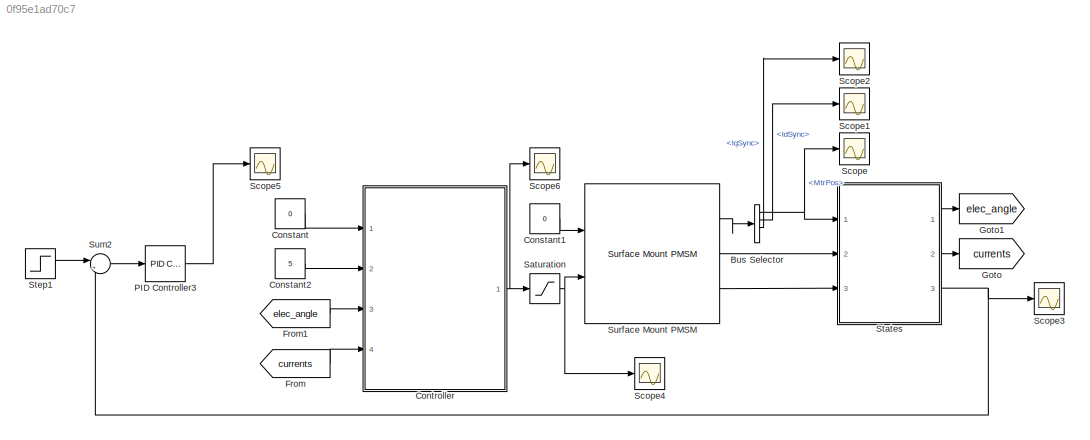
MODEL slx_0f95e1ad70c7
KIND model
CONFIG AbsTol = auto
CONFIG EnableMultiTasking = off
CONFIG FixedStep = auto
CONFIG MaxStep = auto
CONFIG MinStep = auto
CONFIG RelTol = 1e-3
CONFIG SampleTimeConstraint = Unconstrained
CONFIG SolverName = VariableStepAuto
CONFIG StartTime = 0.0
CONFIG StopTime = 5
BLOCK [BusSelector] Bus Selector
  OutputSignals = MtrPos,IdSync,IqSync,MtrSpd
  Ports = [1, 4]
BLOCK [Constant] Constant
  Value = 0
BLOCK [Constant] Constant1
  Value = 0
BLOCK [Constant] Constant2
  Value = 5
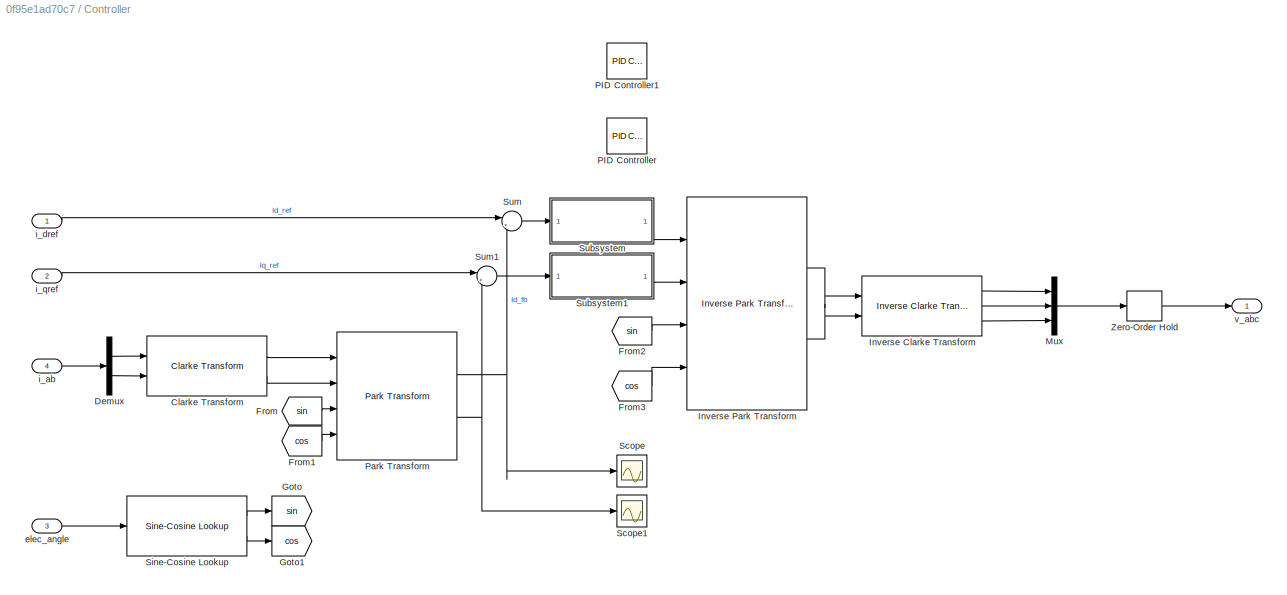
BLOCK [SubSystem] Controller
  Ports = [4, 1]
  RequestExecContextInheritance = off
BLOCK [Reference] Controller/Clarke Transform  REF=mcbcontrolslib/Clarke Transform
  Ports = [2, 2]
  SourceBlock = mcbcontrolslib/Clarke Transform
  SourceProductBaseCode = MT
  SourceType = Clarke Transform
BLOCK [Demux] Controller/Demux
  Outputs = 2
  Ports = [1, 2]
BLOCK [From] Controller/From
  GotoTag = sin
BLOCK [From] Controller/From1
  GotoTag = cos
BLOCK [From] Controller/From2
  GotoTag = sin
BLOCK [From] Controller/From3
  GotoTag = cos
BLOCK [Goto] Controller/Goto
  GotoTag = sin
BLOCK [Goto] Controller/Goto1
  GotoTag = cos
BLOCK [Reference] Controller/Inverse Clarke Transform  REF=mcbcontrolslib/Inverse Clarke Transform
  Ports = [2, 3]
  SourceBlock = mcbcontrolslib/Inverse Clarke Transform
  SourceProductBaseCode = MT
  SourceType = Inverse Clarke Transform
BLOCK [Reference] Controller/Inverse Park Transform  REF=mcbcontrolslib/Inverse Park Transform
  Ports = [4, 2]
  SourceBlock = mcbcontrolslib/Inverse Park Transform
  SourceProductBaseCode = MT
  SourceType = Inverse Park Transform
BLOCK [Mux] Controller/Mux
  DisplayOption = bar
  Inputs = 3
  Ports = [3, 1]
BLOCK [Reference] Controller/PID Controller  REF=pid_lib/PID Controller
  Ports = [1, 1]
  SourceBlock = pid_lib/PID Controller
  SourceProductBaseCode = SL
  SourceType = PID 1dof
BLOCK [Reference] Controller/PID Controller1  REF=pid_lib/PID Controller
  Ports = [1, 1]
  SourceBlock = pid_lib/PID Controller
  SourceProductBaseCode = SL
  SourceType = PID 1dof
BLOCK [Reference] Controller/Park Transform  REF=mcbcontrolslib/Park Transform
  Ports = [4, 2]
  SourceBlock = mcbcontrolslib/Park Transform
  SourceProductBaseCode = MT
  SourceType = Park Transform
BLOCK [Scope] Controller/Scope
  Floating = off
  NumInputPorts = 1
  Ports = [1]
  ScopeSpecificationString = Simulink.scopes.TimeScopeBlockCfg('CurrentConfiguration', extmgr.ConfigurationSet(extmgr.Configuration('Core','General UI',true),extmgr.Configuration('Core','Source UI',true),extmgr.Configuration('Sources','WiredSimulink',true,'DataLoggingVariableName','ScopeData2'),extmgr.Configuration('Visuals','Time Domain',true,'SerializedDisplays',{struct('MinYLimReal','-0.00005','MaxYLimReal','0.00041','YLab...<+1408ch>
BLOCK [Scope] Controller/Scope1
  Floating = off
  NumInputPorts = 1
  Ports = [1]
  ScopeSpecificationString = Simulink.scopes.TimeScopeBlockCfg('CurrentConfiguration', extmgr.ConfigurationSet(extmgr.Configuration('Core','General UI',true),extmgr.Configuration('Core','Source UI',true),extmgr.Configuration('Sources','WiredSimulink',true,'DataLoggingVariableName','ScopeData3'),extmgr.Configuration('Visuals','Time Domain',true,'SerializedDisplays',{struct('MinYLimReal','4.93755','MaxYLimReal','5.01792','YLabe...<+1417ch>
BLOCK [Reference] Controller/Sine-Cosine Lookup  REF=mcbcontrolslib/Sine-Cosine Lookup
  Ports = [1, 2]
  SourceBlock = mcbcontrolslib/Sine-Cosine Lookup
  SourceProductBaseCode = MT
  SourceType = Sine-Cosine Lookup
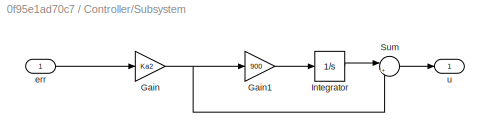
BLOCK [SubSystem] Controller/Subsystem
  Ports = [1, 1]
  RequestExecContextInheritance = off
BLOCK [Gain] Controller/Subsystem/Gain
  Gain = Ka2
BLOCK [Gain] Controller/Subsystem/Gain1
  Gain = 900
BLOCK [Integrator] Controller/Subsystem/Integrator
  Ports = [1, 1]
BLOCK [Sum] Controller/Subsystem/Sum
  Inputs = |++
  Ports = [2, 1]
BLOCK [Inport] Controller/Subsystem/err
BLOCK [Outport] Controller/Subsystem/u
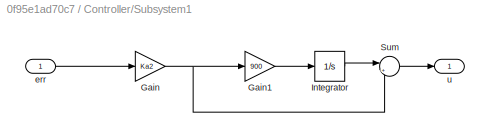
BLOCK [SubSystem] Controller/Subsystem1
  Ports = [1, 1]
  RequestExecContextInheritance = off
BLOCK [Gain] Controller/Subsystem1/Gain
  Gain = Ka2
BLOCK [Gain] Controller/Subsystem1/Gain1
  Gain = 900
BLOCK [Integrator] Controller/Subsystem1/Integrator
  Ports = [1, 1]
BLOCK [Sum] Controller/Subsystem1/Sum
  Inputs = |++
  Ports = [2, 1]
BLOCK [Inport] Controller/Subsystem1/err
BLOCK [Outport] Controller/Subsystem1/u
BLOCK [Sum] Controller/Sum
  Inputs = |+-
  Ports = [2, 1]
BLOCK [Sum] Controller/Sum1
  Inputs = |+-
  Ports = [2, 1]
BLOCK [ZeroOrderHold] Controller/Zero-Order Hold
  SampleTime = Ts
BLOCK [Inport] Controller/elec_angle
  Port = 3
BLOCK [Inport] Controller/i_ab
  Port = 4
BLOCK [Inport] Controller/i_dref
BLOCK [Inport] Controller/i_qref
  Port = 2
BLOCK [Outport] Controller/v_abc
BLOCK [From] From
  GotoTag = currents
BLOCK [From] From1
  GotoTag = elec_angle
BLOCK [Goto] Goto
  GotoTag = currents
BLOCK [Goto] Goto1
  GotoTag = elec_angle
BLOCK [Reference] PID Controller3  REF=pid_lib/PID Controller
  Ports = [1, 1]
  SourceBlock = pid_lib/PID Controller
  SourceProductBaseCode = SL
  SourceType = PID 1dof
BLOCK [Saturate] Saturation
  LowerLimit = -50
  UpperLimit = 50
BLOCK [Scope] Scope
  Floating = off
  NumInputPorts = 1
  Ports = [1]
  ScopeSpecificationString = Simulink.scopes.TimeScopeBlockCfg('CurrentConfiguration', extmgr.ConfigurationSet(extmgr.Configuration('Core','General UI',true),extmgr.Configuration('Core','Source UI',true),extmgr.Configuration('Sources','WiredSimulink',true,'DataLoggingVariableName','ScopeData1'),extmgr.Configuration('Visuals','Time Domain',true,'SerializedDisplays',{struct('MinYLimReal','-3.92684','MaxYLimReal','3.92697','YLab...<+1367ch>
BLOCK [Scope] Scope1
  Floating = off
  NumInputPorts = 1
  Ports = [1]
  ScopeSpecificationString = Simulink.scopes.TimeScopeBlockCfg('CurrentConfiguration', extmgr.ConfigurationSet(extmgr.Configuration('Core','General UI',true),extmgr.Configuration('Core','Source UI',true),extmgr.Configuration('Sources','WiredSimulink',true,'DataLoggingVariableName','ScopeData2'),extmgr.Configuration('Visuals','Time Domain',true,'SerializedDisplays',{struct('MinYLimReal','-0.05365','MaxYLimReal','0.00636','YLab...<+1367ch>
BLOCK [Scope] Scope2
  Floating = off
  NumInputPorts = 1
  Ports = [1]
  ScopeSpecificationString = Simulink.scopes.TimeScopeBlockCfg('CurrentConfiguration', extmgr.ConfigurationSet(extmgr.Configuration('Core','General UI',true),extmgr.Configuration('Core','Source UI',true),extmgr.Configuration('Sources','WiredSimulink',true,'DataLoggingVariableName','ScopeData3'),extmgr.Configuration('Visuals','Time Domain',true,'SerializedDisplays',{struct('MinYLimReal','-25.43849','MaxYLimReal','199.63434','Y...<+1396ch>
BLOCK [Scope] Scope3
  Floating = off
  NumInputPorts = 1
  Ports = [1]
  ScopeSpecificationString = Simulink.scopes.TimeScopeBlockCfg('CurrentConfiguration', extmgr.ConfigurationSet(extmgr.Configuration('Core','General UI',true),extmgr.Configuration('Core','Source UI',true),extmgr.Configuration('Sources','WiredSimulink',true,'DataLoggingVariableName','ScopeData4'),extmgr.Configuration('Visuals','Time Domain',true,'SerializedDisplays',{struct('MinYLimReal','-0.13978','MaxYLimReal','1.25804','YLab...<+1441ch>
BLOCK [Scope] Scope4
  Floating = off
  NumInputPorts = 1
  Ports = [1]
  ScopeSpecificationString = Simulink.scopes.TimeScopeBlockCfg('CurrentConfiguration', extmgr.ConfigurationSet(extmgr.Configuration('Core','General UI',true),extmgr.Configuration('Core','Source UI',true),extmgr.Configuration('Sources','WiredSimulink',true,'DataLoggingVariableName','ScopeData1'),extmgr.Configuration('Visuals','Time Domain',true,'SerializedDisplays',{struct('MinYLimReal','-33.73291','MaxYLimReal','33.71767','YL...<+1451ch>
BLOCK [Scope] Scope5
  Floating = off
  NumInputPorts = 1
  Ports = [1]
  ScopeSpecificationString = Simulink.scopes.TimeScopeBlockCfg('CurrentConfiguration', extmgr.ConfigurationSet(extmgr.Configuration('Core','General UI',true),extmgr.Configuration('Core','Source UI',true),extmgr.Configuration('Sources','WiredSimulink',true,'DataLoggingVariableName','ScopeData2'),extmgr.Configuration('Visuals','Time Domain',true,'SerializedDisplays',{struct('MinYLimReal','-19819.3175','MaxYLimReal','2202.14639'...<+1398ch>
BLOCK [Scope] Scope6
  Floating = off
  NumInputPorts = 1
  Ports = [1]
  ScopeSpecificationString = Simulink.scopes.TimeScopeBlockCfg('CurrentConfiguration', extmgr.ConfigurationSet(extmgr.Configuration('Core','General UI',true),extmgr.Configuration('Core','Source UI',true),extmgr.Configuration('Sources','WiredSimulink',true,'DataLoggingVariableName','ScopeData1'),extmgr.Configuration('Visuals','Time Domain',true,'SerializedDisplays',{struct('MinYLimReal','-33.73291','MaxYLimReal','33.71767','YL...<+1451ch>
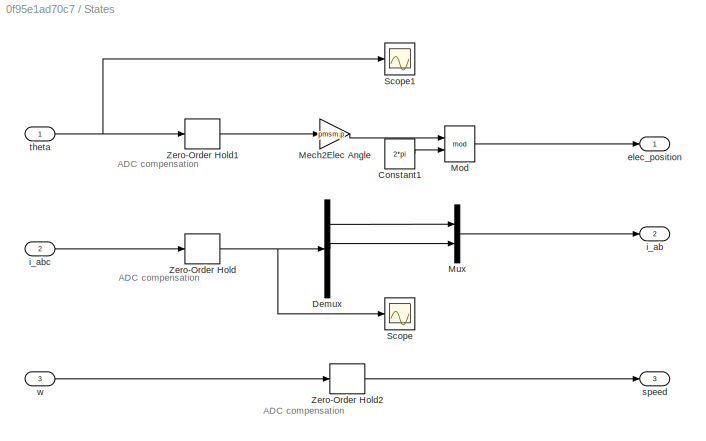
BLOCK [SubSystem] States
  Ports = [3, 3]
  RequestExecContextInheritance = off
BLOCK [Constant] States/Constant1
  Value = 2*pi
BLOCK [Demux] States/Demux
  Outputs = 3
  Ports = [1, 3]
BLOCK [Gain] States/Mech2Elec Angle
  Gain = pmsm.p
BLOCK [Math] States/Mod
  Operator = mod
  Ports = [2, 1]
BLOCK [Mux] States/Mux
  DisplayOption = bar
  Inputs = 2
  Ports = [2, 1]
BLOCK [Scope] States/Scope
  Floating = off
  NumInputPorts = 1
  Ports = [1]
  ScopeSpecificationString = Simulink.scopes.TimeScopeBlockCfg('CurrentConfiguration', extmgr.ConfigurationSet(extmgr.Configuration('Core','General UI',true),extmgr.Configuration('Core','Source UI',true),extmgr.Configuration('Sources','WiredSimulink',true),extmgr.Configuration('Visuals','Time Domain',true,'SerializedDisplays',{struct('MinYLimReal','-6.99296','MaxYLimReal','9.09633','YLabelReal','','MinYLimMag','0.00000','MaxY...<+1451ch>
BLOCK [Scope] States/Scope1
  Floating = off
  NumInputPorts = 1
  Ports = [1]
  ScopeSpecificationString = Simulink.scopes.TimeScopeBlockCfg('CurrentConfiguration', extmgr.ConfigurationSet(extmgr.Configuration('Core','General UI',true),extmgr.Configuration('Core','Source UI',true),extmgr.Configuration('Sources','WiredSimulink',true,'DataLoggingVariableName','ScopeData1'),extmgr.Configuration('Visuals','Time Domain',true,'SerializedDisplays',{struct('MinYLimReal','-3.92696','MaxYLimReal','3.92696','YLab...<+1411ch>
BLOCK [ZeroOrderHold] States/Zero-Order Hold
  SampleTime = Ts
BLOCK [ZeroOrderHold] States/Zero-Order Hold1
  SampleTime = Ts
BLOCK [ZeroOrderHold] States/Zero-Order Hold2
  SampleTime = Ts
BLOCK [Outport] States/elec_position
BLOCK [Outport] States/i_ab
  Port = 2
BLOCK [Inport] States/i_abc
  Port = 2
BLOCK [Outport] States/speed
  Port = 3
BLOCK [Inport] States/theta
BLOCK [Inport] States/w
  Port = 3
BLOCK [Step] Step1
  SampleTime = 0
  Time = 0.1
BLOCK [Sum] Sum2
  Inputs = |+-
  Ports = [2, 1]
BLOCK [Reference] Surface Mount PMSM  REF=autolibpmsmexterior/Surface Mount PMSM
  Ports = [2, 3]
  SourceBlock = autolibpmsmexterior/Surface Mount PMSM
  SourceProductBaseCode = PW,MT,UV,VE,VP
  SourceType = Surface Mount PMSM
ANNOTATION States: ADC compensation
NET Bus Selector:1 -> Scope:1, States:1
LINE Bus Selector:2 -> Scope1:1
LINE Bus Selector:3 -> Scope2:1
LINE Constant1:1 -> Surface Mount PMSM:1
LINE Constant2:1 -> Controller:2
LINE Constant:1 -> Controller:1
LINE Controller/Clarke Transform:1 -> Controller/Park Transform:1
LINE Controller/Clarke Transform:2 -> Controller/Park Transform:2
LINE Controller/Demux:1 -> Controller/Clarke Transform:1
LINE Controller/Demux:2 -> Controller/Clarke Transform:2
LINE Controller/From1:1 -> Controller/Park Transform:4
LINE Controller/From2:1 -> Controller/Inverse Park Transform:3
LINE Controller/From3:1 -> Controller/Inverse Park Transform:4
LINE Controller/From:1 -> Controller/Park Transform:3
LINE Controller/Inverse Clarke Transform:1 -> Controller/Mux:1
LINE Controller/Inverse Clarke Transform:2 -> Controller/Mux:2
LINE Controller/Inverse Clarke Transform:3 -> Controller/Mux:3
LINE Controller/Inverse Park Transform:1 -> Controller/Inverse Clarke Transform:1
LINE Controller/Inverse Park Transform:2 -> Controller/Inverse Clarke Transform:2
LINE Controller/Mux:1 -> Controller/Zero-Order Hold:1
NET Controller/Park Transform:1 -> Controller/Scope:1, Controller/Sum:2
NET Controller/Park Transform:2 -> Controller/Scope1:1, Controller/Sum1:2
LINE Controller/Sine-Cosine Lookup:1 -> Controller/Goto:1
LINE Controller/Sine-Cosine Lookup:2 -> Controller/Goto1:1
LINE Controller/Subsystem/Gain1:1 -> Controller/Subsystem/Integrator:1
NET Controller/Subsystem/Gain:1 -> Controller/Subsystem/Gain1:1, Controller/Subsystem/Sum:2
LINE Controller/Subsystem/Integrator:1 -> Controller/Subsystem/Sum:1
LINE Controller/Subsystem/Sum:1 -> Controller/Subsystem/u:1
LINE Controller/Subsystem/err:1 -> Controller/Subsystem/Gain:1
LINE Controller/Subsystem1/Gain1:1 -> Controller/Subsystem1/Integrator:1
NET Controller/Subsystem1/Gain:1 -> Controller/Subsystem1/Gain1:1, Controller/Subsystem1/Sum:2
LINE Controller/Subsystem1/Integrator:1 -> Controller/Subsystem1/Sum:1
LINE Controller/Subsystem1/Sum:1 -> Controller/Subsystem1/u:1
LINE Controller/Subsystem1/err:1 -> Controller/Subsystem1/Gain:1
LINE Controller/Subsystem1:1 -> Controller/Inverse Park Transform:2
LINE Controller/Subsystem:1 -> Controller/Inverse Park Transform:1
LINE Controller/Sum1:1 -> Controller/Subsystem1:1
LINE Controller/Sum:1 -> Controller/Subsystem:1
LINE Controller/Zero-Order Hold:1 -> Controller/v_abc:1
LINE Controller/elec_angle:1 -> Controller/Sine-Cosine Lookup:1
LINE Controller/i_ab:1 -> Controller/Demux:1
LINE Controller/i_dref:1 -> Controller/Sum:1
LINE Controller/i_qref:1 -> Controller/Sum1:1
NET Controller:1 -> Saturation:1, Scope6:1
LINE From1:1 -> Controller:3
LINE From:1 -> Controller:4
LINE PID Controller3:1 -> Scope5:1
NET Saturation:1 -> Scope4:1, Surface Mount PMSM:2
LINE States/Constant1:1 -> States/Mod:2
LINE States/Demux:1 -> States/Mux:1
LINE States/Demux:2 -> States/Mux:2
LINE States/Mech2Elec Angle:1 -> States/Mod:1
LINE States/Mod:1 -> States/elec_position:1
LINE States/Mux:1 -> States/i_ab:1
LINE States/Zero-Order Hold1:1 -> States/Mech2Elec Angle:1
LINE States/Zero-Order Hold2:1 -> States/speed:1
NET States/Zero-Order Hold:1 -> States/Demux:1, States/Scope:1
LINE States/i_abc:1 -> States/Zero-Order Hold:1
NET States/theta:1 -> States/Scope1:1, States/Zero-Order Hold1:1
LINE States/w:1 -> States/Zero-Order Hold2:1
LINE States:1 -> Goto1:1
LINE States:2 -> Goto:1
NET States:3 -> Scope3:1, Sum2:2
LINE Step1:1 -> Sum2:1
LINE Sum2:1 -> PID Controller3:1
LINE Surface Mount PMSM:1 -> Bus Selector:1
LINE Surface Mount PMSM:2 -> States:2
LINE Surface Mount PMSM:3 -> States:3
note: NET lines group one-source signal fan-out (src -> all destinations, sorted); 1:1 wires keep LINE
